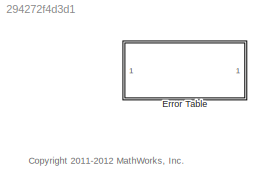
MODEL slx_294272f4d3d1
KIND model
CONFIG AbsTol = auto
CONFIG EnableMultiTasking = on
CONFIG FixedStep = auto
CONFIG MaxStep = auto
CONFIG MinStep = auto
CONFIG RelTol = 1e-3
CONFIG SampleTimeConstraint = Unconstrained
CONFIG Solver = ode45
CONFIG SolverName = ode45
CONFIG StartTime = 0.0
CONFIG StopTime = 10.0
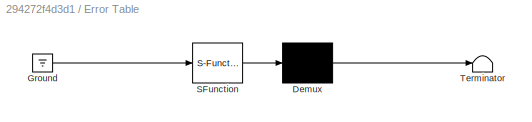
BLOCK [SubSystem] Error Table
  ErrorFcn = Stateflow.Translate.translate
  PermitHierarchicalResolution = ExplicitOnly
  Ports = []
  RequestExecContextInheritance = off
  SFBlockType = State Transition Table
  TreatAsAtomicUnit = on
  Variant = off
BLOCK [Demux] Error Table/ Demux 
  Outputs = 1
  Ports = [1, 1]
BLOCK [Ground] Error Table/ Ground 
BLOCK [S-Function] Error Table/ SFunction 
  EnableBusSupport = off
  FunctionName = sf_sfun
  PortCounts = [1 1]
  Ports = [1, 1]
  SFcnIsStateOwnerBlock = off
  SFunctionDeploymentMode = off
  Tag = Stateflow S-Function sf_diagnostics_STT 4
BLOCK [Terminator] Error Table/ Terminator 
ANNOTATION (root): <copyright redacted>
CHART Error Table states=6 transitions=8
  STATE_LABEL 'state1'
  STATE_LABEL 'state2'
  STATE_LABEL 'state3'
  STATE_LABEL 'state4'
  STATE_LABEL 'state4_1'
  STATE_LABEL 'state4_2'
  STATE_LABEL 'state4_1'
  STATE_LABEL 'state4_2'
